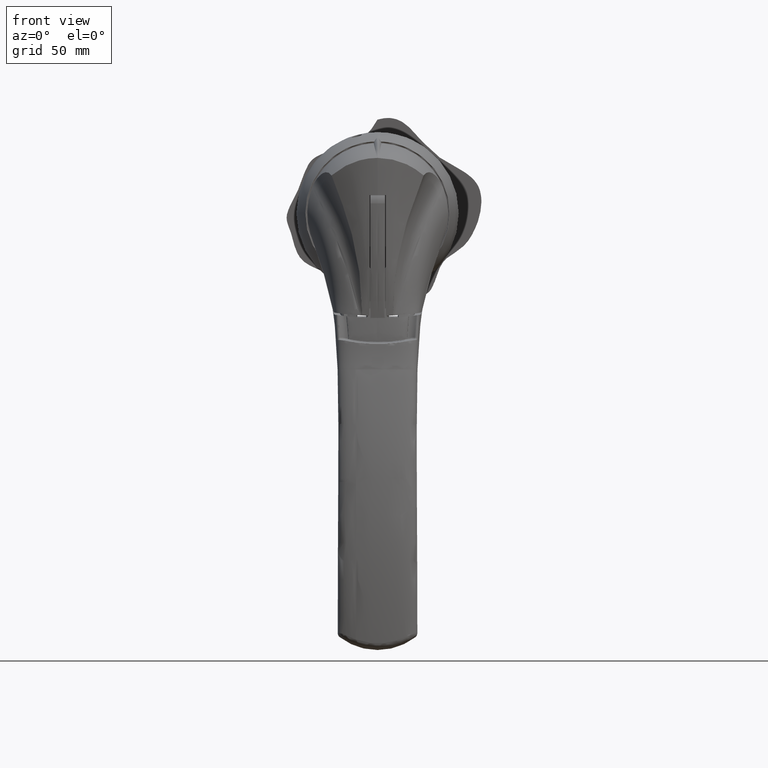
[diagram: clean part render]
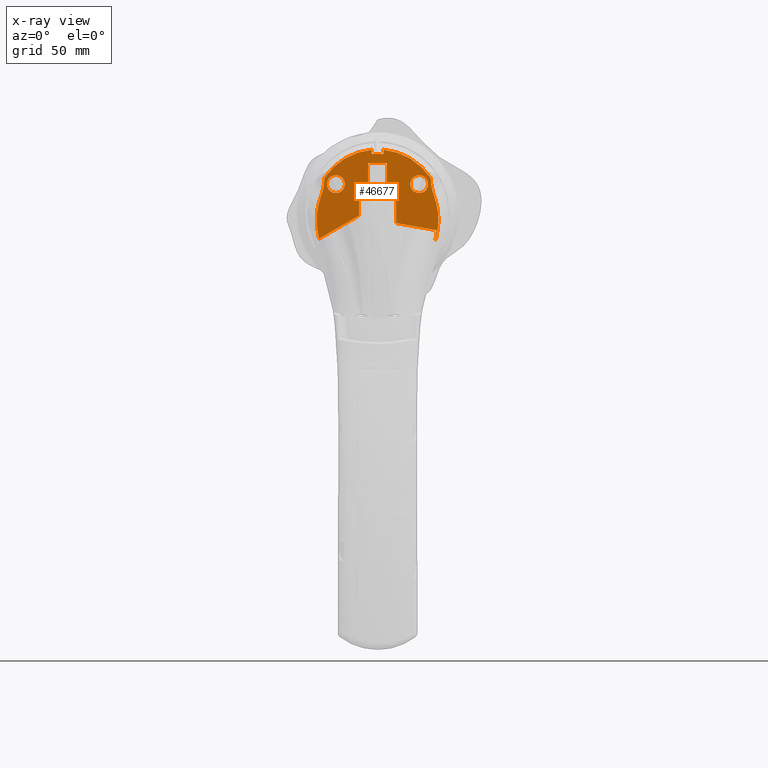
[diagram: x-ray — body ghosted, one internal face saturated and labeled with its STEP entity id]
A machine part, front view, then the same camera in x-ray: the body is ghosted and one INTERNAL B-rep face — a face not visible from any outside direction — is saturated and labeled: STEP entity #46677.
In plain terms, the highlighted planar face has unit normal (0, -1, 0).
Its self-contained STEP definition (entity closure, byte-faithful):
#1826=CARTESIAN_POINT('',(2.775679020805E1,-1.849996421177E1,
-1.295220512510E1));
#1827=CARTESIAN_POINT('',(2.777666742331E1,-1.849996421177E1,
-1.284580549831E1));
#1828=CARTESIAN_POINT('',(2.781478104223E1,-1.850003903671E1,
-1.263326356231E1));
#1829=CARTESIAN_POINT('',(2.786989957551E1,-1.849991705385E1,
-1.231589647411E1));
#1830=CARTESIAN_POINT('',(2.790495170620E1,-1.850016751654E1,
-1.210516230135E1));
#1831=CARTESIAN_POINT('',(2.792191305154E1,-1.850016751654E1,
-1.200000040480E1));
#1838=CARTESIAN_POINT('',(2.775679020805E1,-1.849996421177E1,
-1.295220512510E1));
#1925=CARTESIAN_POINT('',(2.839001492690E1,-1.850000014182E1,
-8.174770784320E0));
#1936=CARTESIAN_POINT('',(2.792191305154E1,-1.850016751654E1,
-1.200000040480E1));
#1937=CARTESIAN_POINT('',(2.798753984059E1,-1.850016751654E1,
-1.159310831077E1));
#1938=CARTESIAN_POINT('',(2.811016766026E1,-1.849992184453E1,
-1.076731755745E1));
#1939=CARTESIAN_POINT('',(2.826543672740E1,-1.850002226936E1,
-9.491306230691E0));
#1940=CARTESIAN_POINT('',(2.835115292069E1,-1.850000014182E1,
-8.617532154188E0));
#1941=CARTESIAN_POINT('',(2.839001492690E1,-1.850000014182E1,
-8.174770784320E0));
#1958=CARTESIAN_POINT('',(2.792191305154E1,-1.850016751654E1,
-1.200000040480E1));
#1982=DIRECTION('',(0.E0,0.E0,1.E0));
#1983=VECTOR('',#1982,1.373815537274E1);
#1984=CARTESIAN_POINT('',(8.9E0,-1.85E1,-4.738155372739E0));
#1985=LINE('',#1984,#1983);
#13408=CARTESIAN_POINT('',(-2.790201344837E1,-1.850002260101E1,
-1.212214891302E1));
#13409=CARTESIAN_POINT('',(-2.788693720488E1,-1.850002260101E1,
-1.221390042300E1));
#13410=CARTESIAN_POINT('',(-2.785580124329E1,-1.849998468110E1,
-1.239769221272E1));
#13411=CARTESIAN_POINT('',(-2.780742634363E1,-1.850001971464E1,
-1.267436082641E1));
#13412=CARTESIAN_POINT('',(-2.777410296160E1,-1.849996421177E1,
-1.285953266104E1));
#13413=CARTESIAN_POINT('',(-2.775679020805E1,-1.849996421177E1,
-1.295220512510E1));
#13654=CARTESIAN_POINT('',(-2.E1,-1.85E1,1.4E1));
#13655=DIRECTION('',(0.E0,1.E0,0.E0));
#13656=DIRECTION('',(0.E0,0.E0,-1.E0));
#13657=AXIS2_PLACEMENT_3D('',#13654,#13655,#13656);
#13659=CARTESIAN_POINT('',(-2.E1,-1.85E1,1.4E1));
#13660=DIRECTION('',(0.E0,1.E0,0.E0));
#13661=DIRECTION('',(1.E0,0.E0,0.E0));
#13662=AXIS2_PLACEMENT_3D('',#13659,#13660,#13661);
#13664=CARTESIAN_POINT('',(-2.E1,-1.85E1,1.4E1));
#13665=DIRECTION('',(0.E0,1.E0,0.E0));
#13666=DIRECTION('',(0.E0,0.E0,1.E0));
#13667=AXIS2_PLACEMENT_3D('',#13664,#13665,#13666);
#13669=CARTESIAN_POINT('',(-2.E1,-1.85E1,1.4E1));
#13670=DIRECTION('',(0.E0,1.E0,0.E0));
#13671=DIRECTION('',(-1.E0,0.E0,0.E0));
#13672=AXIS2_PLACEMENT_3D('',#13669,#13670,#13671);
#13674=CARTESIAN_POINT('',(2.E1,-1.85E1,1.4E1));
#13675=DIRECTION('',(0.E0,1.E0,0.E0));
#13676=DIRECTION('',(0.E0,0.E0,-1.E0));
#13677=AXIS2_PLACEMENT_3D('',#13674,#13675,#13676);
#13679=CARTESIAN_POINT('',(2.E1,-1.85E1,1.4E1));
#13680=DIRECTION('',(0.E0,1.E0,0.E0));
#13681=DIRECTION('',(1.E0,0.E0,0.E0));
#13682=AXIS2_PLACEMENT_3D('',#13679,#13680,#13681);
#13684=CARTESIAN_POINT('',(2.E1,-1.85E1,1.4E1));
#13685=DIRECTION('',(0.E0,1.E0,0.E0));
#13686=DIRECTION('',(-1.E0,0.E0,0.E0));
#13687=AXIS2_PLACEMENT_3D('',#13684,#13685,#13686);
#13689=DIRECTION('',(9.848077536555E-1,-7.165995074292E-9,-1.736481740189E-1));
#13690=VECTOR('',#13689,1.979067980990E1);
#13691=CARTESIAN_POINT('',(8.9E0,-1.85E1,-4.738155372739E0));
#13692=LINE('',#13691,#13690);
#13693=DIRECTION('',(0.E0,0.E0,1.E0));
#13694=VECTOR('',#13693,1.5E1);
#13695=CARTESIAN_POINT('',(-4.5E0,-1.85E1,9.E0));
#13696=LINE('',#13695,#13694);
#13697=DIRECTION('',(1.E0,0.E0,0.E0));
#13698=VECTOR('',#13697,4.4E0);
#13699=CARTESIAN_POINT('',(-8.9E0,-1.85E1,9.E0));
#13700=LINE('',#13699,#13698);
#13701=DIRECTION('',(8.660261360464E-1,1.030052062686E-6,4.999987316818E-1));
#13702=VECTOR('',#13701,2.194161660654E1);
#13703=CARTESIAN_POINT('',(-2.790201344837E1,-1.850002260101E1,
-1.212214891302E1));
#13704=LINE('',#13703,#13702);
#13705=CARTESIAN_POINT('',(0.E0,-1.85E1,0.E0));
#13706=DIRECTION('',(0.E0,-1.E0,0.E0));
#13707=DIRECTION('',(-9.208808481850E-1,0.E0,-3.898441527663E-1));
#13708=AXIS2_PLACEMENT_3D('',#13705,#13706,#13707);
#13710=DIRECTION('',(1.512062049231E-1,0.E0,-9.885022425836E-1));
#13711=VECTOR('',#13710,4.263110138746E0);
#13712=CARTESIAN_POINT('',(-2.885121539399E1,-1.85E1,-7.727209545154E0));
#13713=LINE('',#13712,#13711);
#13714=CARTESIAN_POINT('',(2.142513867450E0,-1.85E1,-2.986553319251E0));
#13715=DIRECTION('',(0.E0,-1.E0,0.E0));
#13716=DIRECTION('',(-1.E0,0.E0,0.E0));
#13717=AXIS2_PLACEMENT_3D('',#13714,#13715,#13716);
#13719=CARTESIAN_POINT('',(2.142513867450E0,-1.85E1,-2.986553319251E0));
#13720=DIRECTION('',(0.E0,-1.E0,0.E0));
#13721=DIRECTION('',(-9.409170578181E-1,0.E0,3.386371071027E-1));
#13722=AXIS2_PLACEMENT_3D('',#13719,#13720,#13721);
#13724=CARTESIAN_POINT('',(-5.217972734618E1,-1.85E1,1.736214626116E1));
#13725=DIRECTION('',(0.E0,1.E0,0.E0));
#13726=DIRECTION('',(9.998712046130E-1,0.E0,-1.604911791225E-2));
#13727=AXIS2_PLACEMENT_3D('',#13724,#13725,#13726);
#13729=CARTESIAN_POINT('',(0.E0,-1.85E1,0.E0));
#13730=DIRECTION('',(0.E0,-1.E0,0.E0));
#13731=DIRECTION('',(-9.041225008836E-2,0.E0,9.959044256524E-1));
#13732=AXIS2_PLACEMENT_3D('',#13729,#13730,#13731);
#13734=DIRECTION('',(0.E0,0.E0,1.E0));
#13735=VECTOR('',#13734,2.004679056439E0);
#13736=CARTESIAN_POINT('',(-2.769338704273E0,-1.85E1,2.85E1));
#13737=LINE('',#13736,#13735);
#13738=DIRECTION('',(0.E0,0.E0,-1.E0));
#13739=VECTOR('',#13738,1.998216067723E0);
#13740=CARTESIAN_POINT('',(2.839629884652E0,-1.85E1,3.049821606772E1));
#13741=LINE('',#13740,#13739);
#13742=CARTESIAN_POINT('',(0.E0,-1.85E1,0.E0));
#13743=DIRECTION('',(0.E0,-1.E0,0.E0));
#13744=DIRECTION('',(8.332718661396E-1,0.E0,5.528634524910E-1));
#13745=AXIS2_PLACEMENT_3D('',#13742,#13743,#13744);
#13747=CARTESIAN_POINT('',(5.217972734618E1,-1.85E1,1.736214626116E1));
#13748=DIRECTION('',(0.E0,1.E0,0.E0));
#13749=DIRECTION('',(-9.310055940654E-1,0.E0,-3.650049093079E-1));
#13750=AXIS2_PLACEMENT_3D('',#13747,#13748,#13749);
#13752=CARTESIAN_POINT('',(-2.142513867449E0,-1.85E1,-2.986553319251E0));
#13753=DIRECTION('',(0.E0,-1.E0,0.E0));
#13754=DIRECTION('',(1.E0,0.E0,0.E0));
#13755=AXIS2_PLACEMENT_3D('',#13752,#13753,#13754);
#13757=CARTESIAN_POINT('',(-2.142513867449E0,-1.85E1,-2.986553319251E0));
#13758=DIRECTION('',(0.E0,-1.E0,0.E0));
#13759=DIRECTION('',(9.885036645439E-1,0.E0,-1.511969086430E-1));
#13760=AXIS2_PLACEMENT_3D('',#13757,#13758,#13759);
#13762=CARTESIAN_POINT('',(0.E0,-1.85E1,0.E0));
#13763=DIRECTION('',(0.E0,-1.E0,0.E0));
#13764=DIRECTION('',(9.061957867289E-1,0.E0,-4.228583641301E-1));
#13765=AXIS2_PLACEMENT_3D('',#13762,#13763,#13764);
#14017=DIRECTION('',(-1.E0,0.E0,0.E0));
#14018=VECTOR('',#14017,4.4E0);
#14019=CARTESIAN_POINT('',(8.9E0,-1.85E1,9.E0));
#14020=LINE('',#14019,#14018);
#14057=DIRECTION('',(0.E0,0.E0,1.E0));
#14058=VECTOR('',#14057,1.5E1);
#14059=CARTESIAN_POINT('',(4.5E0,-1.85E1,9.E0));
#14060=LINE('',#14059,#14058);
#14065=DIRECTION('',(-1.E0,0.E0,0.E0));
#14066=VECTOR('',#14065,9.E0);
#14067=CARTESIAN_POINT('',(4.5E0,-1.85E1,2.4E1));
#14068=LINE('',#14067,#14066);
#15693=DIRECTION('',(0.E0,0.E0,-1.E0));
#15694=VECTOR('',#15693,1.015136843870E1);
#15695=CARTESIAN_POINT('',(-8.9E0,-1.85E1,9.E0));
#15696=LINE('',#15695,#15694);
#15947=CARTESIAN_POINT('',(-2.552322310115E1,-1.85E1,1.693427777392E1));
#15961=CARTESIAN_POINT('',(-2.769338704273E0,-1.85E1,3.050467905644E1));
#15976=CARTESIAN_POINT('',(2.839629884652E0,-1.85E1,3.049821606772E1));
#15993=DIRECTION('',(1.E0,0.E0,0.E0));
#15994=VECTOR('',#15993,5.608968588925E0);
#15995=CARTESIAN_POINT('',(-2.769338704273E0,-1.85E1,2.85E1));
#15996=LINE('',#15995,#15994);
#16045=DIRECTION('',(-1.512063139225E-1,0.E0,-9.885022259105E-1));
#16046=VECTOR('',#16045,4.263114072645E0);
#16047=CARTESIAN_POINT('',(2.885121539399E1,-1.85E1,-7.727209545154E0));
#16048=LINE('',#16047,#16046);
#16442=VERTEX_POINT('',#13408);
#16443=VERTEX_POINT('',#13413);
#16449=VERTEX_POINT('',#1838);
#16450=VERTEX_POINT('',#1925);
#16466=CARTESIAN_POINT('',(-2.820669734920E1,-1.85E1,-1.194097591682E1));
#16467=VERTEX_POINT('',#16466);
#16522=VERTEX_POINT('',#15961);
#16525=VERTEX_POINT('',#15976);
#16526=CARTESIAN_POINT('',(2.552322310115E1,-1.85E1,1.693427777392E1));
#16527=VERTEX_POINT('',#16526);
#16528=VERTEX_POINT('',#15947);
#16529=CARTESIAN_POINT('',(-2.769338704273E0,-1.85E1,2.85E1));
#16530=VERTEX_POINT('',#16529);
#16531=CARTESIAN_POINT('',(-2.735917600331E1,-1.85E1,7.631138037775E0));
#16532=VERTEX_POINT('',#16531);
#16533=CARTESIAN_POINT('',(-2.921167365166E1,-1.85E1,-2.986553319251E0));
#16534=CARTESIAN_POINT('',(-2.885121539399E1,-1.85E1,-7.727209545153E0));
#16535=VERTEX_POINT('',#16533);
#16536=VERTEX_POINT('',#16534);
#16537=CARTESIAN_POINT('',(-8.9E0,-1.85E1,-1.151368438700E0));
#16538=VERTEX_POINT('',#16537);
#16539=CARTESIAN_POINT('',(-8.9E0,-1.85E1,9.E0));
#16540=VERTEX_POINT('',#16539);
#16541=CARTESIAN_POINT('',(-4.5E0,-1.85E1,9.E0));
#16542=VERTEX_POINT('',#16541);
#16543=CARTESIAN_POINT('',(-4.5E0,-1.85E1,2.4E1));
#16544=VERTEX_POINT('',#16543);
#16545=CARTESIAN_POINT('',(4.5E0,-1.85E1,2.4E1));
#16546=VERTEX_POINT('',#16545);
#16547=CARTESIAN_POINT('',(4.5E0,-1.85E1,9.E0));
#16548=VERTEX_POINT('',#16547);
#16549=CARTESIAN_POINT('',(8.9E0,-1.85E1,9.E0));
#16550=VERTEX_POINT('',#16549);
#16551=CARTESIAN_POINT('',(8.9E0,-1.85E1,-4.738155372739E0));
#16552=VERTEX_POINT('',#16551);
#16553=CARTESIAN_POINT('',(2.820669734920E1,-1.85E1,-1.194097591682E1));
#16554=VERTEX_POINT('',#16553);
#16555=CARTESIAN_POINT('',(2.885121539399E1,-1.85E1,-7.727209545154E0));
#16556=VERTEX_POINT('',#16555);
#16557=CARTESIAN_POINT('',(2.921167365166E1,-1.85E1,-2.986553319251E0));
#16558=VERTEX_POINT('',#16557);
#16559=CARTESIAN_POINT('',(2.735917600331E1,-1.85E1,7.631138037768E0));
#16560=VERTEX_POINT('',#16559);
#16561=CARTESIAN_POINT('',(2.839629884652E0,-1.85E1,2.85E1));
#16562=VERTEX_POINT('',#16561);
#20267=VERTEX_POINT('',#1958);
#20280=CARTESIAN_POINT('',(2.43E1,-1.85E1,1.4E1));
#20282=VERTEX_POINT('',#20280);
#20284=CARTESIAN_POINT('',(1.57E1,-1.85E1,1.4E1));
#20286=VERTEX_POINT('',#20284);
#20290=CARTESIAN_POINT('',(2.E1,-1.85E1,9.699999999999E0));
#20291=VERTEX_POINT('',#20290);
#20294=CARTESIAN_POINT('',(-2.43E1,-1.85E1,1.4E1));
#20296=VERTEX_POINT('',#20294);
#20298=CARTESIAN_POINT('',(-1.57E1,-1.85E1,1.4E1));
#20300=VERTEX_POINT('',#20298);
#20302=CARTESIAN_POINT('',(-2.E1,-1.85E1,1.83E1));
#20303=VERTEX_POINT('',#20302);
#20304=CARTESIAN_POINT('',(-2.E1,-1.85E1,9.699999999999E0));
#20305=VERTEX_POINT('',#20304);
#46603=CARTESIAN_POINT('',(2.220446049250E-13,-1.85E1,3.063012701892E1));
#46604=DIRECTION('',(0.E0,-1.E0,0.E0));
#46605=DIRECTION('',(-1.E0,0.E0,0.E0));
#46606=AXIS2_PLACEMENT_3D('',#46603,#46604,#46605);
#46607=PLANE('',#46606);
#46608=ORIENTED_EDGE('',*,*,#24734,.T.);
#46610=ORIENTED_EDGE('',*,*,#46609,.F.);
#46611=ORIENTED_EDGE('',*,*,#24754,.T.);
#46613=ORIENTED_EDGE('',*,*,#46612,.T.);
#46615=ORIENTED_EDGE('',*,*,#46614,.T.);
#46617=ORIENTED_EDGE('',*,*,#46616,.T.);
#46619=ORIENTED_EDGE('',*,*,#46618,.F.);
#46621=ORIENTED_EDGE('',*,*,#46620,.F.);
#46623=ORIENTED_EDGE('',*,*,#46622,.T.);
#46624=ORIENTED_EDGE('',*,*,#46596,.F.);
#46625=ORIENTED_EDGE('',*,*,#46212,.T.);
#46627=ORIENTED_EDGE('',*,*,#46626,.F.);
#46629=ORIENTED_EDGE('',*,*,#46628,.F.);
#46631=ORIENTED_EDGE('',*,*,#46630,.F.);
#46633=ORIENTED_EDGE('',*,*,#46632,.F.);
#46635=ORIENTED_EDGE('',*,*,#46634,.F.);
#46637=ORIENTED_EDGE('',*,*,#46636,.F.);
#46639=ORIENTED_EDGE('',*,*,#46638,.F.);
#46641=ORIENTED_EDGE('',*,*,#46640,.T.);
#46643=ORIENTED_EDGE('',*,*,#46642,.F.);
#46645=ORIENTED_EDGE('',*,*,#46644,.F.);
#46647=ORIENTED_EDGE('',*,*,#46646,.F.);
#46649=ORIENTED_EDGE('',*,*,#46648,.F.);
#46651=ORIENTED_EDGE('',*,*,#46650,.F.);
#46653=ORIENTED_EDGE('',*,*,#46652,.T.);
#46655=ORIENTED_EDGE('',*,*,#46654,.F.);
#46656=ORIENTED_EDGE('',*,*,#24561,.T.);
#46657=EDGE_LOOP('',(#46608,#46610,#46611,#46613,#46615,#46617,#46619,#46621,
#46623,#46624,#46625,#46627,#46629,#46631,#46633,#46635,#46637,#46639,#46641,
#46643,#46645,#46647,#46649,#46651,#46653,#46655,#46656));
#46658=FACE_OUTER_BOUND('',#46657,.F.);
#46660=ORIENTED_EDGE('',*,*,#46659,.F.);
#46662=ORIENTED_EDGE('',*,*,#46661,.F.);
#46664=ORIENTED_EDGE('',*,*,#46663,.F.);
#46666=ORIENTED_EDGE('',*,*,#46665,.F.);
#46667=EDGE_LOOP('',(#46660,#46662,#46664,#46666));
#46668=FACE_BOUND('',#46667,.F.);
#46670=ORIENTED_EDGE('',*,*,#46669,.F.);
#46672=ORIENTED_EDGE('',*,*,#46671,.F.);
#46674=ORIENTED_EDGE('',*,*,#46673,.F.);
#46675=EDGE_LOOP('',(#46670,#46672,#46674));
#46676=FACE_BOUND('',#46675,.F.);
#46677=ADVANCED_FACE('',(#46658,#46668,#46676),#46607,.T.);
#1832=B_SPLINE_CURVE_WITH_KNOTS('',3,(#1826,#1827,#1828,#1829,#1830,#1831),
.UNSPECIFIED.,.F.,.F.,(4,1,1,4),(0.E0,3.333333333333E-1,6.666666666667E-1,1.E0),
.UNSPECIFIED.);
#1942=B_SPLINE_CURVE_WITH_KNOTS('',3,(#1936,#1937,#1938,#1939,#1940,#1941),
.UNSPECIFIED.,.F.,.F.,(4,1,1,4),(0.E0,3.333333333333E-1,6.666666666667E-1,1.E0),
.UNSPECIFIED.);
#13414=B_SPLINE_CURVE_WITH_KNOTS('',3,(#13408,#13409,#13410,#13411,#13412,
#13413),.UNSPECIFIED.,.F.,.F.,(4,1,1,4),(0.E0,3.333333333333E-1,
6.666666666667E-1,1.E0),.UNSPECIFIED.);
#13658=CIRCLE('',#13657,4.3E0);
#13663=CIRCLE('',#13662,4.3E0);
#13668=CIRCLE('',#13667,4.3E0);
#13673=CIRCLE('',#13672,4.3E0);
#13678=CIRCLE('',#13677,4.3E0);
#13683=CIRCLE('',#13682,4.3E0);
#13688=CIRCLE('',#13687,4.3E0);
#13709=CIRCLE('',#13708,3.063012701892E1);
#13718=CIRCLE('',#13717,3.135418751911E1);
#13723=CIRCLE('',#13722,3.135418751911E1);
#13728=CIRCLE('',#13727,2.665993792206E1);
#13733=CIRCLE('',#13732,3.063012701892E1);
#13746=CIRCLE('',#13745,3.063012701892E1);
#13751=CIRCLE('',#13750,2.665993792206E1);
#13756=CIRCLE('',#13755,3.135418751911E1);
#13761=CIRCLE('',#13760,3.135418751911E1);
#13766=CIRCLE('',#13765,3.063012701892E1);
#24561=EDGE_CURVE('',#16449,#20267,#1832,.T.);
#24734=EDGE_CURVE('',#20267,#16450,#1942,.T.);
#24754=EDGE_CURVE('',#16552,#16550,#1985,.T.);
#46212=EDGE_CURVE('',#16442,#16443,#13414,.T.);
#46596=EDGE_CURVE('',#16442,#16538,#13704,.T.);
#46609=EDGE_CURVE('',#16552,#16450,#13692,.T.);
#46612=EDGE_CURVE('',#16550,#16548,#14020,.T.);
#46614=EDGE_CURVE('',#16548,#16546,#14060,.T.);
#46616=EDGE_CURVE('',#16546,#16544,#14068,.T.);
#46618=EDGE_CURVE('',#16542,#16544,#13696,.T.);
#46620=EDGE_CURVE('',#16540,#16542,#13700,.T.);
#46622=EDGE_CURVE('',#16540,#16538,#15696,.T.);
#46626=EDGE_CURVE('',#16467,#16443,#13709,.T.);
#46628=EDGE_CURVE('',#16536,#16467,#13713,.T.);
#46630=EDGE_CURVE('',#16535,#16536,#13718,.T.);
#46632=EDGE_CURVE('',#16532,#16535,#13723,.T.);
#46634=EDGE_CURVE('',#16528,#16532,#13728,.T.);
#46636=EDGE_CURVE('',#16522,#16528,#13733,.T.);
#46638=EDGE_CURVE('',#16530,#16522,#13737,.T.);
#46640=EDGE_CURVE('',#16530,#16562,#15996,.T.);
#46642=EDGE_CURVE('',#16525,#16562,#13741,.T.);
#46644=EDGE_CURVE('',#16527,#16525,#13746,.T.);
#46646=EDGE_CURVE('',#16560,#16527,#13751,.T.);
#46648=EDGE_CURVE('',#16558,#16560,#13756,.T.);
#46650=EDGE_CURVE('',#16556,#16558,#13761,.T.);
#46652=EDGE_CURVE('',#16556,#16554,#16048,.T.);
#46654=EDGE_CURVE('',#16449,#16554,#13766,.T.);
#46659=EDGE_CURVE('',#20305,#20296,#13658,.T.);
#46661=EDGE_CURVE('',#20300,#20305,#13663,.T.);
#46663=EDGE_CURVE('',#20303,#20300,#13668,.T.);
#46665=EDGE_CURVE('',#20296,#20303,#13673,.T.);
#46669=EDGE_CURVE('',#20291,#20286,#13678,.T.);
#46671=EDGE_CURVE('',#20282,#20291,#13683,.T.);
#46673=EDGE_CURVE('',#20286,#20282,#13688,.T.);